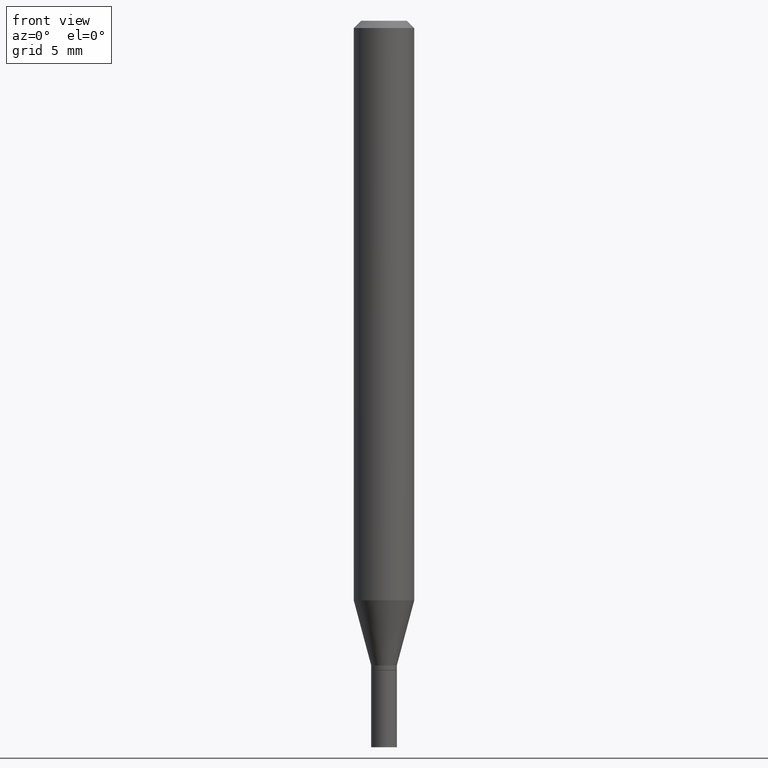
[diagram: clean part render]
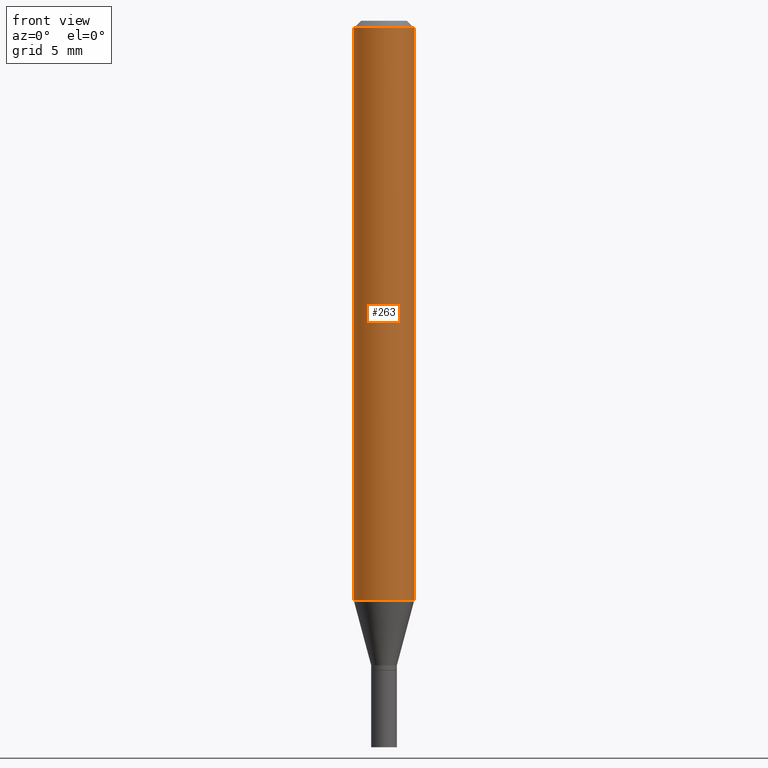
[diagram: same view with one face highlighted and labeled with its STEP entity id]
A machine part, front view. The second image highlights one B-rep face of the part: STEP entity #263.
In plain terms, the highlighted cylindrical surface (edge-blend (fillet) strip) has radius 1.5875 mm, axis along (-0, 0, 1).
Its self-contained STEP definition (entity closure, byte-faithful):
#1 = ORIENTED_EDGE ( 'NONE', *, *, #428, .T. ) ;
#7 = LINE ( 'NONE', #407, #211 ) ;
#25 = CARTESIAN_POINT ( 'NONE',  ( 0.06250000000000000000, -4.888073874380388472E-16, -0.01499999999999999944 ) ) ;
#26 = CYLINDRICAL_SURFACE ( 'NONE', #40, 0.06250000000000000000 ) ;
#28 = CARTESIAN_POINT ( 'NONE',  ( 0.06250000000000000000, -4.614502942346933576E-15, -1.196646170927520458 ) ) ;
#34 = VERTEX_POINT ( 'NONE', #310 ) ;
#37 = VERTEX_POINT ( 'NONE', #25 ) ;
#40 = AXIS2_PLACEMENT_3D ( 'NONE', #249, #307, #374 ) ;
#44 = AXIS2_PLACEMENT_3D ( 'NONE', #151, #438, #443 ) ;
#76 = ORIENTED_EDGE ( 'NONE', *, *, #409, .F. ) ;
#79 = DIRECTION ( 'NONE',  ( -2.445468806185136877E-29, 3.491481338843145188E-15, 1.000000000000000000 ) ) ;
#116 = VERTEX_POINT ( 'NONE', #28 ) ;
#120 = DIRECTION ( 'NONE',  ( -2.445468806185136597E-29, 3.491481338843145583E-15, 1.000000000000000000 ) ) ;
#123 = CARTESIAN_POINT ( 'NONE',  ( 3.668203209277705088E-31, -5.237222008264718399E-17, -0.01499999999999999944 ) ) ;
#127 = DIRECTION ( 'NONE',  ( -2.445468806185136877E-29, 3.491481338843145188E-15, 1.000000000000000000 ) ) ;
#132 = CARTESIAN_POINT ( 'NONE',  ( -0.06250000000000000000, 4.440892098500626162E-16, -3.074334431409316114E-30 ) ) ;
#148 = AXIS2_PLACEMENT_3D ( 'NONE', #123, #120, #333 ) ;
#151 = CARTESIAN_POINT ( 'NONE',  ( 2.926360883044138788E-29, -4.178067774991542695E-15, -1.196646170927520458 ) ) ;
#211 = VECTOR ( 'NONE', #79, 39.37007874015748143 ) ;
#228 = ORIENTED_EDGE ( 'NONE', *, *, #352, .F. ) ;
#249 = CARTESIAN_POINT ( 'NONE',  ( 0.000000000000000000, 0.000000000000000000, 0.000000000000000000 ) ) ;
#253 = CIRCLE ( 'NONE', #44, 0.06250000000000000000 ) ;
#263 = ADVANCED_FACE ( 'NONE', ( #415 ), #26, .T. ) ;
#268 = ORIENTED_EDGE ( 'NONE', *, *, #304, .T. ) ;
#303 = CIRCLE ( 'NONE', #148, 0.06250000000000000000 ) ;
#304 = EDGE_CURVE ( 'NONE', #399, #116, #253, .T. ) ;
#307 = DIRECTION ( 'NONE',  ( -2.445468806185136597E-29, 3.491481338843145583E-15, 1.000000000000000000 ) ) ;
#310 = CARTESIAN_POINT ( 'NONE',  ( -0.06250000000000000000, -1.671130787687032468E-15, -0.01499999999999999944 ) ) ;
#317 = CARTESIAN_POINT ( 'NONE',  ( -0.06250000000000000000, -3.733978565141479290E-15, -1.196646170927520458 ) ) ;
#333 = DIRECTION ( 'NONE',  ( 1.000000000000000000, -6.982962677686266711E-15, 0.000000000000000000 ) ) ;
#352 = EDGE_CURVE ( 'NONE', #399, #34, #372, .T. ) ;
#372 = LINE ( 'NONE', #132, #411 ) ;
#374 = DIRECTION ( 'NONE',  ( 1.000000000000000000, -6.982962677686266711E-15, 4.876176775795935793E-29 ) ) ;
#399 = VERTEX_POINT ( 'NONE', #317 ) ;
#407 = CARTESIAN_POINT ( 'NONE',  ( 0.06250000000000000000, -4.364351673553916694E-16, 3.047610484872459871E-30 ) ) ;
#409 = EDGE_CURVE ( 'NONE', #34, #37, #303, .T. ) ;
#411 = VECTOR ( 'NONE', #127, 39.37007874015748143 ) ;
#415 = FACE_OUTER_BOUND ( 'NONE', #466, .T. ) ;
#428 = EDGE_CURVE ( 'NONE', #116, #37, #7, .T. ) ;
#438 = DIRECTION ( 'NONE',  ( -2.445468806185136597E-29, 3.491481338843145583E-15, 1.000000000000000000 ) ) ;
#443 = DIRECTION ( 'NONE',  ( 1.000000000000000000, -6.982962677686270655E-15, 0.000000000000000000 ) ) ;
#466 = EDGE_LOOP ( 'NONE', ( #228, #268, #1, #76 ) ) ;